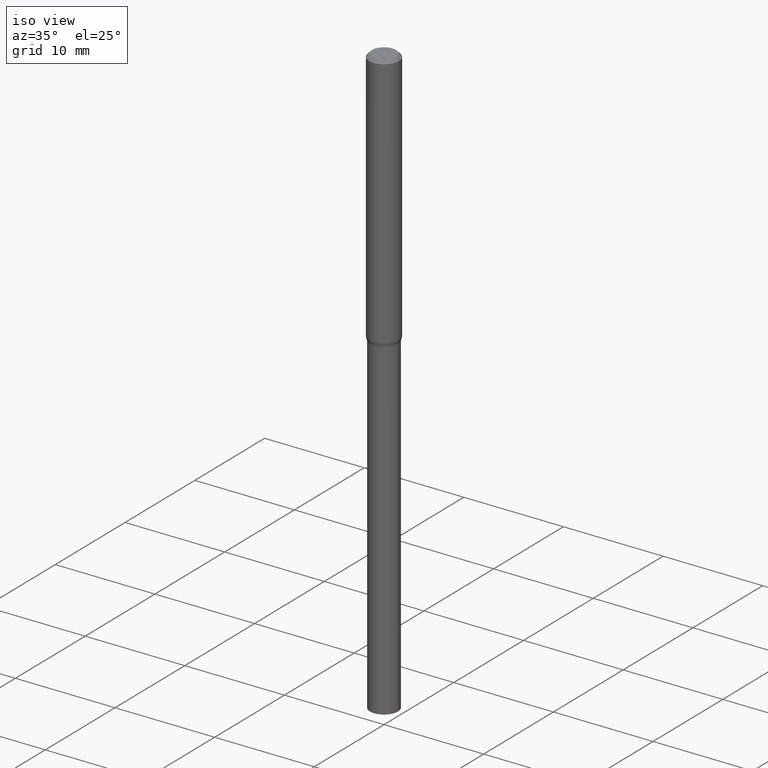
[diagram: clean part render]
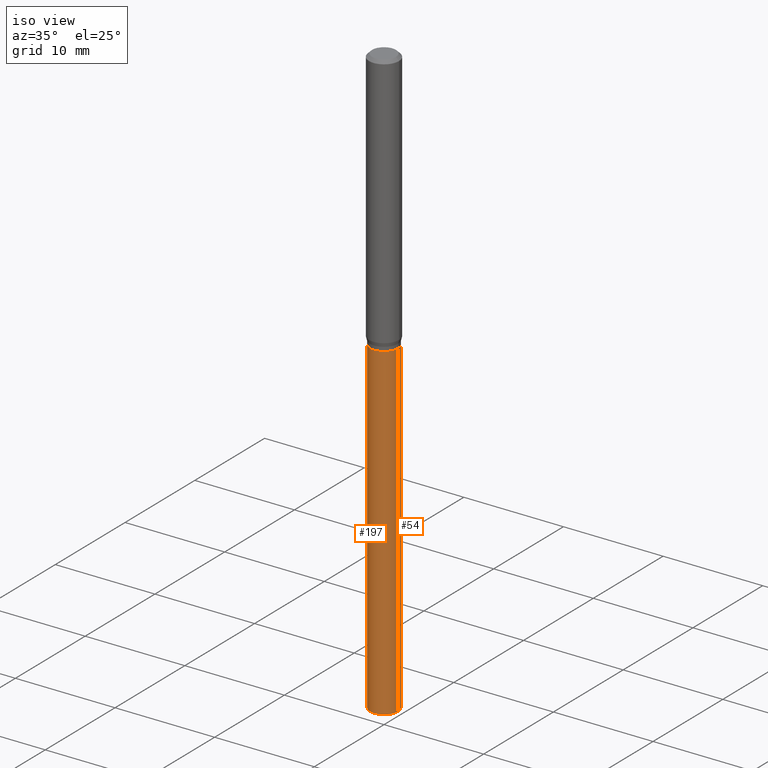
[diagram: same view with one multi-face feature highlighted, each face labeled with its STEP entity id]
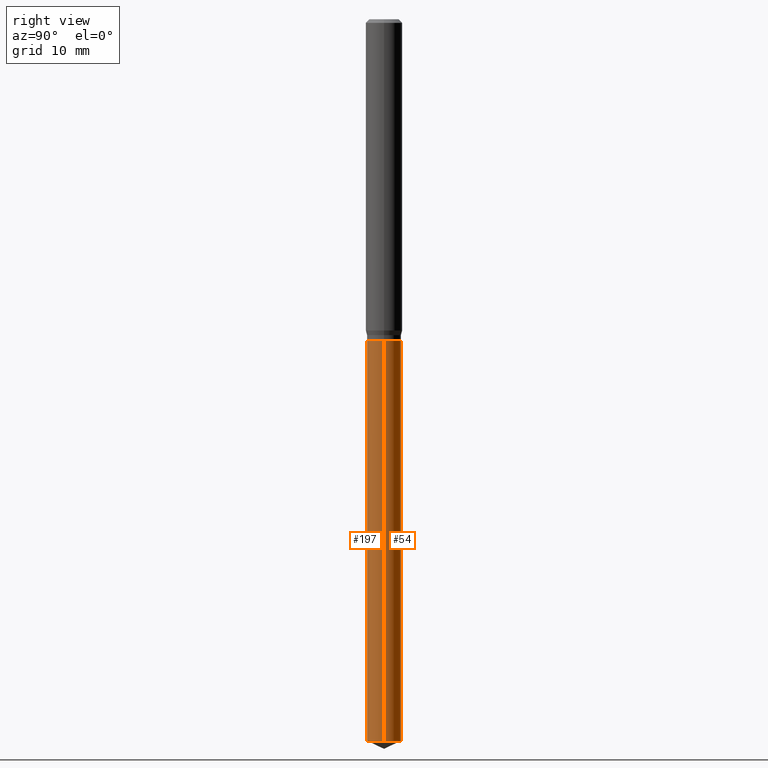
[diagram: same view with one multi-face feature highlighted, each face labeled with its STEP entity id]
A machine part, iso view. The highlighted faces form ONE feature: a constant-radius fillet chain: 2 tangent blend faces with common blend radius 1.3995 mm. The faces share edges in the B-rep.
A second angle (right view) of the same feature is appended — it is thin or edge-on in the first view.
Their STEP definitions:
[1] entity #197 (Cylinder):
#10 = CARTESIAN_POINT ( 'NONE',  ( 5.713364540360402873E-29, -8.157170365135421298E-15, -2.336306448035660122 ) ) ;
#29 = DIRECTION ( 'NONE',  ( -2.445468806185136597E-29, 3.491481338843145583E-15, 1.000000000000000000 ) ) ;
#37 = VERTEX_POINT ( 'NONE', #61 ) ;
#41 = DIRECTION ( 'NONE',  ( -2.445468806185136597E-29, 3.491481338843145583E-15, 1.000000000000000000 ) ) ;
#51 = CARTESIAN_POINT ( 'NONE',  ( -0.05510000000000000314, -3.236838359921982302E-15, -1.039200000000000124 ) ) ;
#57 = EDGE_LOOP ( 'NONE', ( #469, #127, #421, #356 ) ) ;
#61 = CARTESIAN_POINT ( 'NONE',  ( 0.05509999999999999620, -8.541931608675934884E-15, -2.336306448035660122 ) ) ;
#64 = CYLINDRICAL_SURFACE ( 'NONE', #86, 0.05510000000000000314 ) ;
#86 = AXIS2_PLACEMENT_3D ( 'NONE', #156, #29, #420 ) ;
#92 = VERTEX_POINT ( 'NONE', #444 ) ;
#95 = CIRCLE ( 'NONE', #391, 0.05510000000000000314 ) ;
#127 = ORIENTED_EDGE ( 'NONE', *, *, #312, .T. ) ;
#129 = VECTOR ( 'NONE', #144, 39.37007874015748143 ) ;
#135 = VERTEX_POINT ( 'NONE', #257 ) ;
#137 = VERTEX_POINT ( 'NONE', #386 ) ;
#144 = DIRECTION ( 'NONE',  ( -2.445468806185136877E-29, 3.491481338843145188E-15, 1.000000000000000000 ) ) ;
#145 = EDGE_CURVE ( 'NONE', #37, #92, #179, .T. ) ;
#149 = CARTESIAN_POINT ( 'NONE',  ( 0.05510000000000000314, -4.013108650866310965E-15, -1.039200000000000124 ) ) ;
#156 = CARTESIAN_POINT ( 'NONE',  ( 2.541331183387594184E-29, -3.628347407325797379E-15, -1.039200000000000124 ) ) ;
#179 = LINE ( 'NONE', #149, #129 ) ;
#197 = ADVANCED_FACE ( 'NONE', ( #260 ), #64, .T. ) ;
#228 = EDGE_CURVE ( 'NONE', #137, #92, #95, .T. ) ;
#241 = DIRECTION ( 'NONE',  ( -2.445468806185136597E-29, 3.491481338843145583E-15, 1.000000000000000000 ) ) ;
#249 = VECTOR ( 'NONE', #426, 39.37007874015748143 ) ;
#257 = CARTESIAN_POINT ( 'NONE',  ( -0.05509999999999999620, -7.765661317731605038E-15, -2.336306448035660122 ) ) ;
#260 = FACE_OUTER_BOUND ( 'NONE', #57, .T. ) ;
#269 = AXIS2_PLACEMENT_3D ( 'NONE', #10, #41, #278 ) ;
#270 = DIRECTION ( 'NONE',  ( 1.000000000000000000, -6.982962677686265133E-15, 0.000000000000000000 ) ) ;
#278 = DIRECTION ( 'NONE',  ( 1.000000000000000000, -6.982962677686274599E-15, 0.000000000000000000 ) ) ;
#312 = EDGE_CURVE ( 'NONE', #135, #37, #489, .T. ) ;
#342 = EDGE_CURVE ( 'NONE', #135, #137, #349, .T. ) ;
#349 = LINE ( 'NONE', #51, #249 ) ;
#352 = CARTESIAN_POINT ( 'NONE',  ( 2.541331183387593623E-29, -3.628347407325796590E-15, -1.039199999999999902 ) ) ;
#356 = ORIENTED_EDGE ( 'NONE', *, *, #228, .F. ) ;
#386 = CARTESIAN_POINT ( 'NONE',  ( -0.05510000000000000314, -5.501249838826793473E-15, -1.039199999999999902 ) ) ;
#391 = AXIS2_PLACEMENT_3D ( 'NONE', #352, #241, #270 ) ;
#420 = DIRECTION ( 'NONE',  ( 1.000000000000000000, -6.982962677686265133E-15, 0.000000000000000000 ) ) ;
#421 = ORIENTED_EDGE ( 'NONE', *, *, #145, .T. ) ;
#426 = DIRECTION ( 'NONE',  ( -2.445468806185136877E-29, 3.491481338843145188E-15, 1.000000000000000000 ) ) ;
#444 = CARTESIAN_POINT ( 'NONE',  ( 0.05510000000000000314, -4.013108650866310176E-15, -1.039199999999999902 ) ) ;
#469 = ORIENTED_EDGE ( 'NONE', *, *, #342, .F. ) ;
#489 = CIRCLE ( 'NONE', #269, 0.05510000000000000314 ) ;
[2] entity #54 (Cylinder):
#11 = AXIS2_PLACEMENT_3D ( 'NONE', #446, #294, #460 ) ;
#26 = DIRECTION ( 'NONE',  ( -2.445468806185136597E-29, 3.491481338843145583E-15, 1.000000000000000000 ) ) ;
#30 = CYLINDRICAL_SURFACE ( 'NONE', #11, 0.05510000000000000314 ) ;
#37 = VERTEX_POINT ( 'NONE', #61 ) ;
#51 = CARTESIAN_POINT ( 'NONE',  ( -0.05510000000000000314, -3.236838359921982302E-15, -1.039200000000000124 ) ) ;
#54 = ADVANCED_FACE ( 'NONE', ( #222 ), #30, .T. ) ;
#61 = CARTESIAN_POINT ( 'NONE',  ( 0.05509999999999999620, -8.541931608675934884E-15, -2.336306448035660122 ) ) ;
#92 = VERTEX_POINT ( 'NONE', #444 ) ;
#97 = CARTESIAN_POINT ( 'NONE',  ( 5.713364540360402873E-29, -8.157170365135421298E-15, -2.336306448035660122 ) ) ;
#108 = DIRECTION ( 'NONE',  ( 1.000000000000000000, -6.982962677686265133E-15, 0.000000000000000000 ) ) ;
#129 = VECTOR ( 'NONE', #144, 39.37007874015748143 ) ;
#135 = VERTEX_POINT ( 'NONE', #257 ) ;
#137 = VERTEX_POINT ( 'NONE', #386 ) ;
#141 = EDGE_CURVE ( 'NONE', #92, #137, #277, .T. ) ;
#143 = DIRECTION ( 'NONE',  ( 1.000000000000000000, -6.982962677686274599E-15, 0.000000000000000000 ) ) ;
#144 = DIRECTION ( 'NONE',  ( -2.445468806185136877E-29, 3.491481338843145188E-15, 1.000000000000000000 ) ) ;
#145 = EDGE_CURVE ( 'NONE', #37, #92, #179, .T. ) ;
#149 = CARTESIAN_POINT ( 'NONE',  ( 0.05510000000000000314, -4.013108650866310965E-15, -1.039200000000000124 ) ) ;
#153 = AXIS2_PLACEMENT_3D ( 'NONE', #97, #26, #143 ) ;
#162 = CIRCLE ( 'NONE', #153, 0.05510000000000000314 ) ;
#179 = LINE ( 'NONE', #149, #129 ) ;
#191 = ORIENTED_EDGE ( 'NONE', *, *, #422, .T. ) ;
#195 = ORIENTED_EDGE ( 'NONE', *, *, #145, .F. ) ;
#222 = FACE_OUTER_BOUND ( 'NONE', #360, .T. ) ;
#231 = AXIS2_PLACEMENT_3D ( 'NONE', #336, #289, #108 ) ;
#249 = VECTOR ( 'NONE', #426, 39.37007874015748143 ) ;
#257 = CARTESIAN_POINT ( 'NONE',  ( -0.05509999999999999620, -7.765661317731605038E-15, -2.336306448035660122 ) ) ;
#277 = CIRCLE ( 'NONE', #231, 0.05510000000000000314 ) ;
#289 = DIRECTION ( 'NONE',  ( -2.445468806185136597E-29, 3.491481338843145583E-15, 1.000000000000000000 ) ) ;
#294 = DIRECTION ( 'NONE',  ( -2.445468806185136597E-29, 3.491481338843145583E-15, 1.000000000000000000 ) ) ;
#336 = CARTESIAN_POINT ( 'NONE',  ( 2.541331183387593623E-29, -3.628347407325796590E-15, -1.039199999999999902 ) ) ;
#342 = EDGE_CURVE ( 'NONE', #135, #137, #349, .T. ) ;
#345 = ORIENTED_EDGE ( 'NONE', *, *, #342, .T. ) ;
#349 = LINE ( 'NONE', #51, #249 ) ;
#358 = ORIENTED_EDGE ( 'NONE', *, *, #141, .F. ) ;
#360 = EDGE_LOOP ( 'NONE', ( #191, #345, #358, #195 ) ) ;
#386 = CARTESIAN_POINT ( 'NONE',  ( -0.05510000000000000314, -5.501249838826793473E-15, -1.039199999999999902 ) ) ;
#422 = EDGE_CURVE ( 'NONE', #37, #135, #162, .T. ) ;
#426 = DIRECTION ( 'NONE',  ( -2.445468806185136877E-29, 3.491481338843145188E-15, 1.000000000000000000 ) ) ;
#444 = CARTESIAN_POINT ( 'NONE',  ( 0.05510000000000000314, -4.013108650866310176E-15, -1.039199999999999902 ) ) ;
#446 = CARTESIAN_POINT ( 'NONE',  ( 2.541331183387594184E-29, -3.628347407325797379E-15, -1.039200000000000124 ) ) ;
#460 = DIRECTION ( 'NONE',  ( 1.000000000000000000, -6.982962677686265133E-15, 0.000000000000000000 ) ) ;